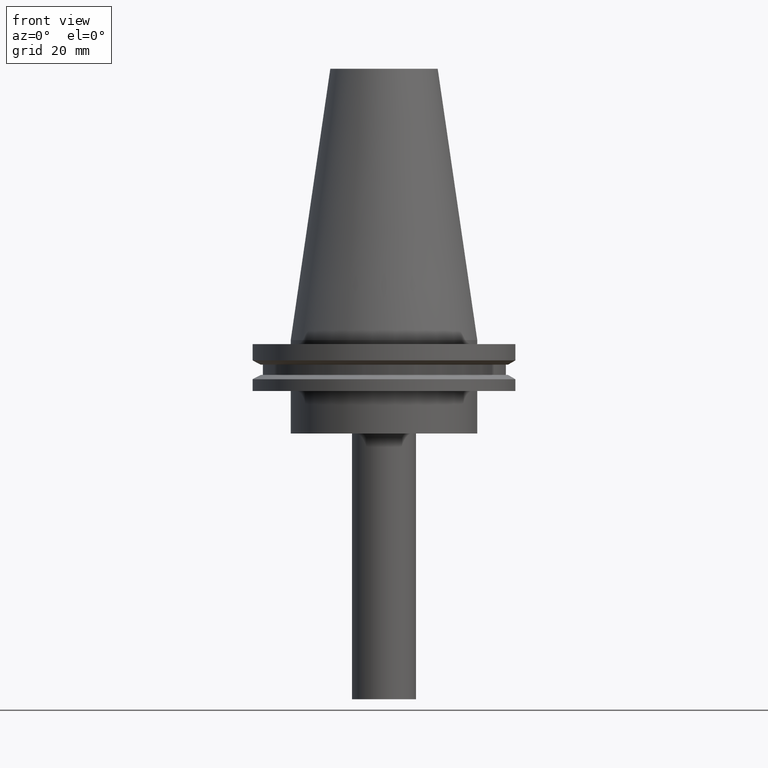
[diagram: clean part render]
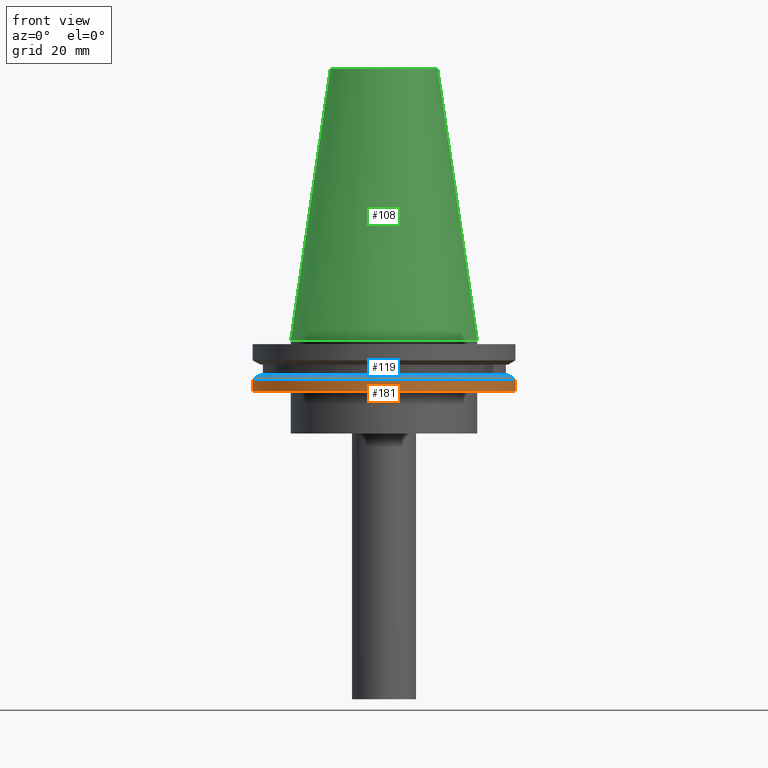
[diagram: same view with three faces highlighted in distinct colors, each labeled with its STEP entity id]
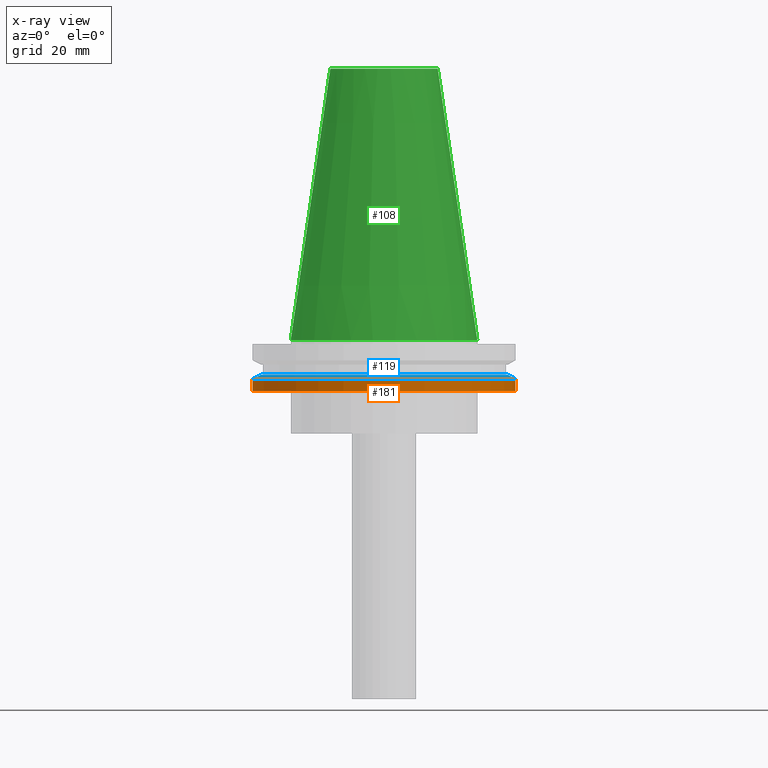
[diagram: x-ray of the same camera — body ghosted, the three highlighted faces saturated]
A machine part, front view with three faces highlighted in distinct colors.
The next image is the same camera in x-ray (body ghosted, the three faces saturated) — at least one of them is partly hidden behind the body in this view.
Their STEP definitions:

[orange] entity #181 — the highlighted cylindrical surface (bore or boss wall) has radius 49.215 mm, axis along (-0, -0, 1).
#7 = AXIS2_PLACEMENT_3D ( 'NONE', #81, #359, #76 ) ;
#8 = AXIS2_PLACEMENT_3D ( 'NONE', #104, #106, #229 ) ;
#27 = CIRCLE ( 'NONE', #31, 49.21499999999998920 ) ;
#31 = AXIS2_PLACEMENT_3D ( 'NONE', #234, #207, #112 ) ;
#41 = EDGE_LOOP ( 'NONE', ( #90 ) ) ;
#65 = CARTESIAN_POINT ( 'NONE',  ( 49.21499999999998920, 0.000000000000000000, -14.65761014474876944 ) ) ;
#71 = CARTESIAN_POINT ( 'NONE',  ( 49.21499999999998920, 0.000000000000000000, -19.04999999999999716 ) ) ;
#76 = DIRECTION ( 'NONE',  ( 1.000000000000000000, 0.000000000000000000, 0.000000000000000000 ) ) ;
#81 = CARTESIAN_POINT ( 'NONE',  ( 0.000000000000000000, 0.000000000000000000, 101.5999999999999943 ) ) ;
#90 = ORIENTED_EDGE ( 'NONE', *, *, #93, .F. ) ;
#93 = EDGE_CURVE ( 'NONE', #318, #318, #357, .T. ) ;
#104 = CARTESIAN_POINT ( 'NONE',  ( 0.000000000000000000, 0.000000000000000000, -14.65761014474876944 ) ) ;
#106 = DIRECTION ( 'NONE',  ( -0.000000000000000000, -0.000000000000000000, 1.000000000000000000 ) ) ;
#112 = DIRECTION ( 'NONE',  ( 1.000000000000000000, 0.000000000000000000, 0.000000000000000000 ) ) ;
#118 = FACE_OUTER_BOUND ( 'NONE', #157, .T. ) ;
#134 = VERTEX_POINT ( 'NONE', #71 ) ;
#157 = EDGE_LOOP ( 'NONE', ( #252 ) ) ;
#163 = EDGE_CURVE ( 'NONE', #134, #134, #27, .T. ) ;
#176 = CYLINDRICAL_SURFACE ( 'NONE', #7, 49.21499999999998920 ) ;
#181 = ADVANCED_FACE ( 'NONE', ( #271, #118 ), #176, .T. ) ;
#207 = DIRECTION ( 'NONE',  ( -0.000000000000000000, -0.000000000000000000, 1.000000000000000000 ) ) ;
#229 = DIRECTION ( 'NONE',  ( 1.000000000000000000, 0.000000000000000000, 0.000000000000000000 ) ) ;
#234 = CARTESIAN_POINT ( 'NONE',  ( 0.000000000000000000, 0.000000000000000000, -19.04999999999999716 ) ) ;
#252 = ORIENTED_EDGE ( 'NONE', *, *, #163, .T. ) ;
#271 = FACE_OUTER_BOUND ( 'NONE', #41, .T. ) ;
#318 = VERTEX_POINT ( 'NONE', #65 ) ;
#357 = CIRCLE ( 'NONE', #8, 49.21499999999998920 ) ;
#359 = DIRECTION ( 'NONE',  ( -0.000000000000000000, -0.000000000000000000, 1.000000000000000000 ) ) ;

[blue] entity #119 — the highlighted conical surface has half-angle 60 deg.
#3 = CARTESIAN_POINT ( 'NONE',  ( 46.43919780457007818, 0.000000000000000000, -13.05499999999999794 ) ) ;
#8 = AXIS2_PLACEMENT_3D ( 'NONE', #104, #106, #229 ) ;
#15 = DIRECTION ( 'NONE',  ( 1.000000000000000000, 0.000000000000000000, 0.000000000000000000 ) ) ;
#34 = VERTEX_POINT ( 'NONE', #3 ) ;
#49 = AXIS2_PLACEMENT_3D ( 'NONE', #326, #266, #206 ) ;
#65 = CARTESIAN_POINT ( 'NONE',  ( 49.21499999999998920, 0.000000000000000000, -14.65761014474876944 ) ) ;
#68 = DIRECTION ( 'NONE',  ( -0.000000000000000000, -0.000000000000000000, 1.000000000000000000 ) ) ;
#91 = CONICAL_SURFACE ( 'NONE', #49, 49.21499999999998920, 1.047197551196554333 ) ;
#93 = EDGE_CURVE ( 'NONE', #318, #318, #357, .T. ) ;
#104 = CARTESIAN_POINT ( 'NONE',  ( 0.000000000000000000, 0.000000000000000000, -14.65761014474876944 ) ) ;
#106 = DIRECTION ( 'NONE',  ( -0.000000000000000000, -0.000000000000000000, 1.000000000000000000 ) ) ;
#119 = ADVANCED_FACE ( 'NONE', ( #390, #268 ), #91, .T. ) ;
#122 = CIRCLE ( 'NONE', #141, 46.43919780457007818 ) ;
#141 = AXIS2_PLACEMENT_3D ( 'NONE', #315, #68, #15 ) ;
#166 = ORIENTED_EDGE ( 'NONE', *, *, #93, .T. ) ;
#198 = EDGE_LOOP ( 'NONE', ( #166 ) ) ;
#206 = DIRECTION ( 'NONE',  ( -1.000000000000000000, 0.000000000000000000, 0.000000000000000000 ) ) ;
#229 = DIRECTION ( 'NONE',  ( 1.000000000000000000, 0.000000000000000000, 0.000000000000000000 ) ) ;
#266 = DIRECTION ( 'NONE',  ( 0.000000000000000000, 0.000000000000000000, -1.000000000000000000 ) ) ;
#268 = FACE_OUTER_BOUND ( 'NONE', #198, .T. ) ;
#285 = EDGE_LOOP ( 'NONE', ( #310 ) ) ;
#310 = ORIENTED_EDGE ( 'NONE', *, *, #364, .F. ) ;
#315 = CARTESIAN_POINT ( 'NONE',  ( 0.000000000000000000, 0.000000000000000000, -13.05499999999999794 ) ) ;
#318 = VERTEX_POINT ( 'NONE', #65 ) ;
#326 = CARTESIAN_POINT ( 'NONE',  ( 0.000000000000000000, 0.000000000000000000, -14.65761014474876944 ) ) ;
#357 = CIRCLE ( 'NONE', #8, 49.21499999999998920 ) ;
#364 = EDGE_CURVE ( 'NONE', #34, #34, #122, .T. ) ;
#390 = FACE_BOUND ( 'NONE', #285, .T. ) ;

[green] entity #108 — the highlighted conical surface has half-angle 8.297 deg.
#22 = CARTESIAN_POINT ( 'NONE',  ( 0.000000000000000000, 0.000000000000000000, 0.000000000000000000 ) ) ;
#30 = CIRCLE ( 'NONE', #55, 20.10819343178871321 ) ;
#46 = FACE_BOUND ( 'NONE', #64, .T. ) ;
#54 = FACE_OUTER_BOUND ( 'NONE', #101, .T. ) ;
#55 = AXIS2_PLACEMENT_3D ( 'NONE', #265, #343, #383 ) ;
#63 = CARTESIAN_POINT ( 'NONE',  ( 34.92499999999999005, 0.000000000000000000, 0.000000000000000000 ) ) ;
#64 = EDGE_LOOP ( 'NONE', ( #323 ) ) ;
#66 = CIRCLE ( 'NONE', #222, 34.92499999999999005 ) ;
#83 = DIRECTION ( 'NONE',  ( 0.000000000000000000, 0.000000000000000000, -1.000000000000000000 ) ) ;
#101 = EDGE_LOOP ( 'NONE', ( #215 ) ) ;
#108 = ADVANCED_FACE ( 'NONE', ( #46, #54 ), #187, .T. ) ;
#142 = DIRECTION ( 'NONE',  ( -0.000000000000000000, -0.000000000000000000, 1.000000000000000000 ) ) ;
#144 = DIRECTION ( 'NONE',  ( -1.000000000000000000, 0.000000000000000000, 0.000000000000000000 ) ) ;
#183 = VERTEX_POINT ( 'NONE', #63 ) ;
#187 = CONICAL_SURFACE ( 'NONE', #313, 34.92499999999999005, 0.1448138465474119452 ) ;
#215 = ORIENTED_EDGE ( 'NONE', *, *, #239, .T. ) ;
#222 = AXIS2_PLACEMENT_3D ( 'NONE', #22, #142, #388 ) ;
#239 = EDGE_CURVE ( 'NONE', #183, #183, #66, .T. ) ;
#242 = CARTESIAN_POINT ( 'NONE',  ( 0.000000000000000000, 0.000000000000000000, 0.000000000000000000 ) ) ;
#265 = CARTESIAN_POINT ( 'NONE',  ( 0.000000000000000000, 0.000000000000000000, 101.5999999999999801 ) ) ;
#278 = CARTESIAN_POINT ( 'NONE',  ( 20.10819343178871321, 0.000000000000000000, 101.5999999999999801 ) ) ;
#313 = AXIS2_PLACEMENT_3D ( 'NONE', #242, #83, #144 ) ;
#323 = ORIENTED_EDGE ( 'NONE', *, *, #394, .F. ) ;
#343 = DIRECTION ( 'NONE',  ( -0.000000000000000000, -0.000000000000000000, 1.000000000000000000 ) ) ;
#363 = VERTEX_POINT ( 'NONE', #278 ) ;
#383 = DIRECTION ( 'NONE',  ( 1.000000000000000000, 0.000000000000000000, 0.000000000000000000 ) ) ;
#388 = DIRECTION ( 'NONE',  ( 1.000000000000000000, 0.000000000000000000, 0.000000000000000000 ) ) ;
#394 = EDGE_CURVE ( 'NONE', #363, #363, #30, .T. ) ;